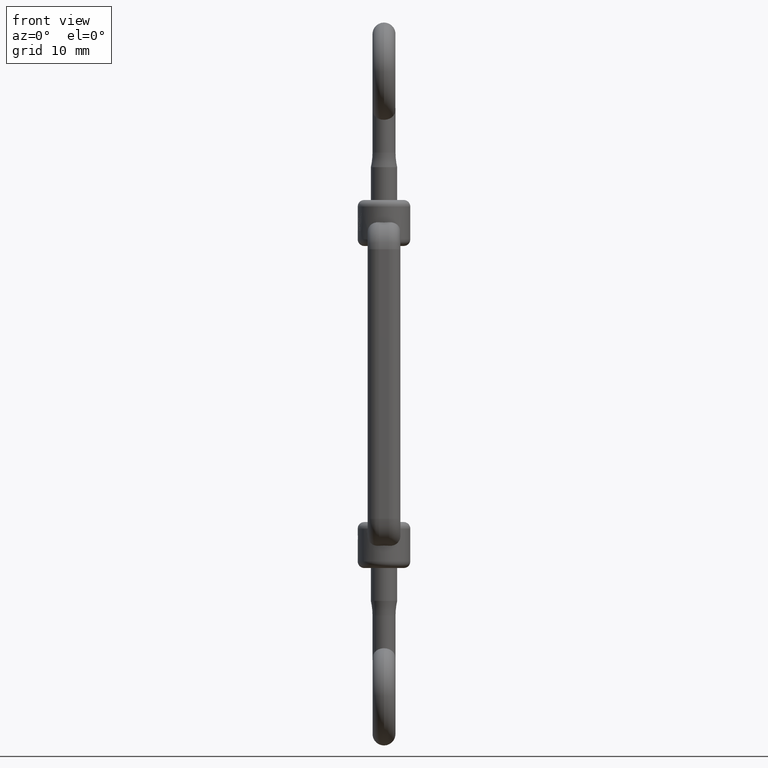
[diagram: clean part render]
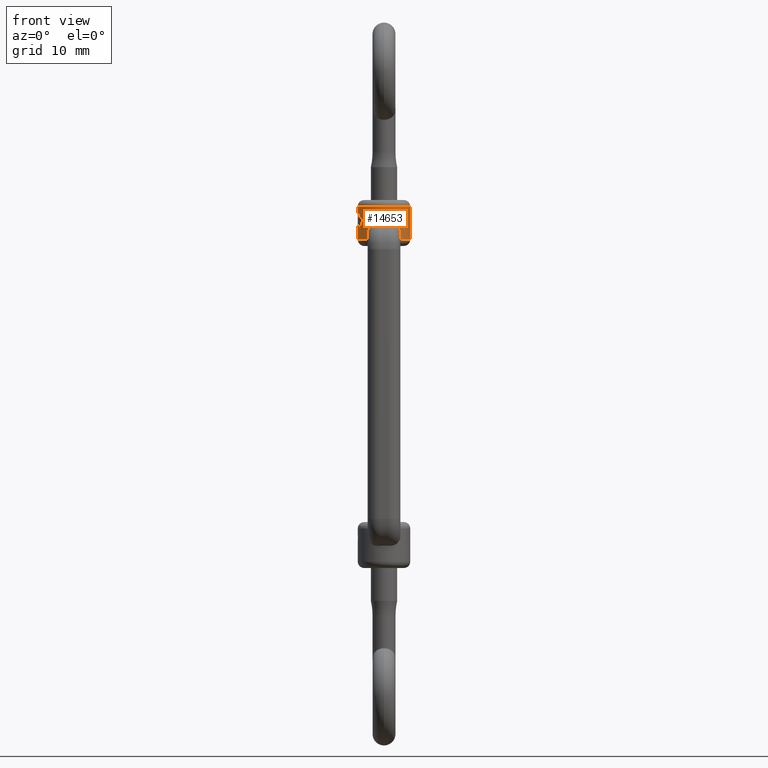
[diagram: same view with one face highlighted and labeled with its STEP entity id]
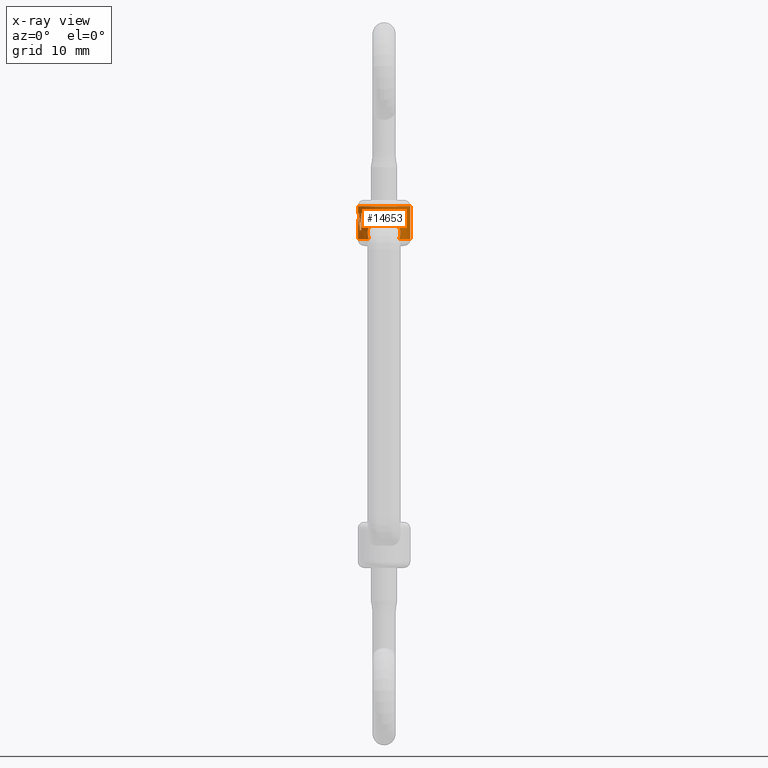
[diagram: x-ray of the same camera — body ghosted, the highlighted face saturated]
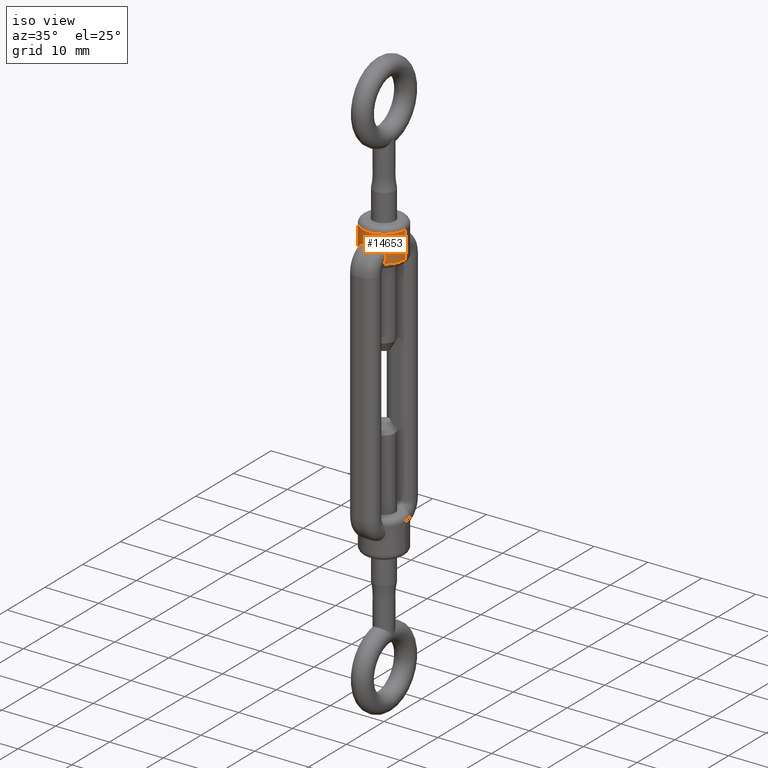
[diagram: same view with one face highlighted and labeled with its STEP entity id]
A machine part, front view. The second image highlights one B-rep face of the part: STEP entity #14653.
The next image is the same camera in x-ray: the body ghosted, the highlighted face saturated — about 0% of this face is hidden behind the body in this view.
A second angle (iso view) of the same face is appended — the face is thin or edge-on in the first view.
In plain terms, the highlighted cylindrical surface (edge-blend (fillet) strip) has radius 4 mm, axis along (0, 0, 1).
Its self-contained STEP definition (entity closure, byte-faithful):
#102 = ORIENTED_EDGE ( 'NONE', *, *, #237, .T. ) ;
#112 = CARTESIAN_POINT ( 'NONE',  ( -3.820607176815367100, -1.201438252666023400, 24.58450743411681200 ) ) ;
#232 = CARTESIAN_POINT ( 'NONE',  ( -3.675891280086085000, -1.577283518263987300, 23.35416666666666800 ) ) ;
#237 = EDGE_CURVE ( 'NONE', #10668, #16321, #13884, .T. ) ;
#293 = CARTESIAN_POINT ( 'NONE',  ( 0.0000000000000000000, 4.730167233106488900E-017, 26.00000000000000400 ) ) ;
#301 = CARTESIAN_POINT ( 'NONE',  ( 0.0000000000000000000, 4.730167233106488900E-017, 27.00000000000000000 ) ) ;
#322 = CARTESIAN_POINT ( 'NONE',  ( 0.0000000000000000000, 4.730167233106488900E-017, 22.00000000000000400 ) ) ;
#323 = CIRCLE ( 'NONE', #15048, 4.000000000000017800 ) ;
#403 = CARTESIAN_POINT ( 'NONE',  ( 2.505915121698893500, -3.117779883364031800, 23.08535089372180600 ) ) ;
#404 = EDGE_CURVE ( 'NONE', #4971, #8187, #12880, .T. ) ;
#488 = CARTESIAN_POINT ( 'NONE',  ( -1.915807076917279300, -3.513640479461432400, 24.31116552042230700 ) ) ;
#536 = FACE_OUTER_BOUND ( 'NONE', #8416, .T. ) ;
#603 = CIRCLE ( 'NONE', #13427, 4.000000000000016900 ) ;
#657 = CARTESIAN_POINT ( 'NONE',  ( -2.133886989436876400, -3.385633248180955700, 24.11095676014379700 ) ) ;
#669 = CARTESIAN_POINT ( 'NONE',  ( -3.958317004454552400, -0.6105656288967674600, 23.96933705039174000 ) ) ;
#877 = VERTEX_POINT ( 'NONE', #16607 ) ;
#1055 = CARTESIAN_POINT ( 'NONE',  ( -3.997650107110154200, -0.1582977044203428800, 24.79707448271205500 ) ) ;
#1343 = VERTEX_POINT ( 'NONE', #7484 ) ;
#1428 = CARTESIAN_POINT ( 'NONE',  ( -3.982074811440984100, -0.4203692242310844700, 24.88590912126068800 ) ) ;
#1568 = DIRECTION ( 'NONE',  ( -0.8635355810548461800, -0.5042879140454082900, 0.0000000000000000000 ) ) ;
#1597 = CARTESIAN_POINT ( 'NONE',  ( 1.794267954794493300, -3.578120044754976400, 24.39218967301063400 ) ) ;
#1652 = CARTESIAN_POINT ( 'NONE',  ( 2.435236385432427000, -3.173514875280989400, 23.56578017992050200 ) ) ;
#1675 = DIRECTION ( 'NONE',  ( -0.0000000000000000000, -0.0000000000000000000, 1.000000000000000000 ) ) ;
#1702 = CARTESIAN_POINT ( 'NONE',  ( 2.232963278390115200, -3.319964034197485000, 23.98604057360628500 ) ) ;
#1703 = CARTESIAN_POINT ( 'NONE',  ( 0.0000000000000000000, 4.730167233106488900E-017, 23.35416666666666800 ) ) ;
#1761 = DIRECTION ( 'NONE',  ( 0.0000000000000000000, 0.0000000000000000000, -1.000000000000000000 ) ) ;
#1833 = CARTESIAN_POINT ( 'NONE',  ( -1.519110280752455900, -3.703287374382886900, 24.52220438770821800 ) ) ;
#1886 = CARTESIAN_POINT ( 'NONE',  ( -2.285367486464756400, -3.282848679395670400, 22.00000000000000400 ) ) ;
#1967 = CARTESIAN_POINT ( 'NONE',  ( -0.5015506673385821100, -3.976483768798634500, 24.59041598686850700 ) ) ;
#2015 = CARTESIAN_POINT ( 'NONE',  ( -3.922250082186132600, -0.8105665843933194100, 24.58450743411681200 ) ) ;
#2268 = CIRCLE ( 'NONE', #3363, 4.000000000000016900 ) ;
#2309 = ORIENTED_EDGE ( 'NONE', *, *, #3494, .T. ) ;
#2621 = DIRECTION ( 'NONE',  ( -0.0000000000000000000, -0.0000000000000000000, 1.000000000000000000 ) ) ;
#2733 = CARTESIAN_POINT ( 'NONE',  ( -3.518084065579619500, -1.905759295061697100, 25.44295456063034400 ) ) ;
#2766 = ORIENTED_EDGE ( 'NONE', *, *, #6933, .F. ) ;
#3014 = ORIENTED_EDGE ( 'NONE', *, *, #12704, .F. ) ;
#3057 = CARTESIAN_POINT ( 'NONE',  ( -2.478139809287710300, -3.139964928057229700, 22.60798330392394100 ) ) ;
#3062 = ORIENTED_EDGE ( 'NONE', *, *, #15175, .T. ) ;
#3115 = CARTESIAN_POINT ( 'NONE',  ( -0.9102807958134560000, -3.898463142923325600, 24.62512443992187300 ) ) ;
#3121 = CARTESIAN_POINT ( 'NONE',  ( 4.000000000000017800, 4.730167233106488900E-017, 21.00000000000000000 ) ) ;
#3124 = CARTESIAN_POINT ( 'NONE',  ( 0.0000000000000000000, 4.730167233106488900E-017, 22.00000000000000400 ) ) ;
#3189 = VERTEX_POINT ( 'NONE', #6109 ) ;
#3223 = DIRECTION ( 'NONE',  ( 1.000000000000000000, 0.0000000000000000000, 0.0000000000000000000 ) ) ;
#3239 = CARTESIAN_POINT ( 'NONE',  ( 0.2522201147461041200, -3.999881959504913100, 24.57927059126723200 ) ) ;
#3279 = CARTESIAN_POINT ( 'NONE',  ( -2.378056580479059400, -3.217631623502056600, 23.72367511925733300 ) ) ;
#3363 = AXIS2_PLACEMENT_3D ( 'NONE', #293, #13386, #16075 ) ;
#3483 = CARTESIAN_POINT ( 'NONE',  ( 0.7499999999999984500, -3.929058411375446100, 24.61151375137878400 ) ) ;
#3494 = EDGE_CURVE ( 'NONE', #16789, #7013, #10937, .T. ) ;
#3919 = CARTESIAN_POINT ( 'NONE',  ( -3.806015099991135700, -1.230548275623351000, 26.00000000000000400 ) ) ;
#3942 = ORIENTED_EDGE ( 'NONE', *, *, #6254, .F. ) ;
#4034 = VERTEX_POINT ( 'NONE', #13330 ) ;
#4107 = DIRECTION ( 'NONE',  ( -0.8019418066703470900, -0.5974021582772359700, 0.0000000000000000000 ) ) ;
#4168 = ORIENTED_EDGE ( 'NONE', *, *, #14603, .F. ) ;
#4215 = CARTESIAN_POINT ( 'NONE',  ( -3.675891280086085000, -1.577283518263987300, 23.35416666666666800 ) ) ;
#4228 = AXIS2_PLACEMENT_3D ( 'NONE', #322, #4397, #13590 ) ;
#4374 = DIRECTION ( 'NONE',  ( -1.000000000000000000, 0.0000000000000000000, 0.0000000000000000000 ) ) ;
#4393 = CARTESIAN_POINT ( 'NONE',  ( -0.7499999999999984500, -3.929058411375446100, 24.61151375137878400 ) ) ;
#4397 = DIRECTION ( 'NONE',  ( -0.0000000000000000000, -0.0000000000000000000, 1.000000000000000000 ) ) ;
#4504 = CARTESIAN_POINT ( 'NONE',  ( -2.496662105179642900, -3.125435674280251200, 23.25929025545020300 ) ) ;
#4558 = DIRECTION ( 'NONE',  ( -0.0000000000000000000, -0.0000000000000000000, 1.000000000000000000 ) ) ;
#4615 = CARTESIAN_POINT ( 'NONE',  ( -2.389663278387283100, -3.210242770591276600, 22.30010719318571300 ) ) ;
#4663 = AXIS2_PLACEMENT_3D ( 'NONE', #3124, #8537, #16394 ) ;
#4839 = CARTESIAN_POINT ( 'NONE',  ( -3.454142324219400300, -2.017151656181642000, 23.35416666666666800 ) ) ;
#4916 = VECTOR ( 'NONE', #6039, 1000.000000000000000 ) ;
#4971 = VERTEX_POINT ( 'NONE', #13513 ) ;
#5108 = CARTESIAN_POINT ( 'NONE',  ( -0.7499999999999984500, -3.929058411375446100, 24.61151375137878400 ) ) ;
#5453 = B_SPLINE_CURVE_WITH_KNOTS ( 'NONE', 3,
 ( #232, #6751, #112, #11866 ),
 .UNSPECIFIED., .F., .F.,
 ( 4, 4 ),
 ( 0.0000000000000000000, 1.000000000000000000 ),
 .UNSPECIFIED. ) ;
#5583 = EDGE_CURVE ( 'NONE', #14681, #13548, #15483, .T. ) ;
#5596 = CARTESIAN_POINT ( 'NONE',  ( 2.381679117500231000, -3.214948020150076400, 23.71540290496990600 ) ) ;
#5710 = CARTESIAN_POINT ( 'NONE',  ( 2.285367486464756000, -3.282848679395671300, 22.00000000000001100 ) ) ;
#5731 = CARTESIAN_POINT ( 'NONE',  ( 0.0000000000000000000, 4.730167233106488900E-017, 23.35416666666666800 ) ) ;
#5856 = CARTESIAN_POINT ( 'NONE',  ( -1.066627542642636600, -3.858493691155237200, 24.61884925725691200 ) ) ;
#5869 = DIRECTION ( 'NONE',  ( -0.9947591092094586500, -0.1022463429409802100, 0.0000000000000000000 ) ) ;
#5875 = CARTESIAN_POINT ( 'NONE',  ( -3.992954459425235700, -0.2373071531923571800, 24.32886368189102900 ) ) ;
#5912 = CARTESIAN_POINT ( 'NONE',  ( -2.432289659441128700, -3.175789167133020700, 23.57552887162764700 ) ) ;
#5926 = CARTESIAN_POINT ( 'NONE',  ( -3.979036436837851500, -0.4089853717639225200, 23.35416666666666800 ) ) ;
#6039 = DIRECTION ( 'NONE',  ( -0.0000000000000000000, -0.0000000000000000000, 1.000000000000000000 ) ) ;
#6089 = CARTESIAN_POINT ( 'NONE',  ( -3.207767226681401700, -2.389608633108954100, 26.00000000000000400 ) ) ;
#6109 = CARTESIAN_POINT ( 'NONE',  ( -3.871250776647956900, -1.006686358456659700, 25.19967781784188100 ) ) ;
#6142 = EDGE_CURVE ( 'NONE', #877, #4971, #9785, .T. ) ;
#6254 = EDGE_CURVE ( 'NONE', #4034, #14769, #603, .T. ) ;
#6339 = CARTESIAN_POINT ( 'NONE',  ( 4.000000000000017800, 4.730167233106488900E-017, 27.00000000000000000 ) ) ;
#6487 = EDGE_CURVE ( 'NONE', #15719, #3189, #5453, .T. ) ;
#6625 = VERTEX_POINT ( 'NONE', #11687 ) ;
#6751 = CARTESIAN_POINT ( 'NONE',  ( -3.755240041148034000, -1.392359618726709800, 23.96933705039174400 ) ) ;
#6838 = EDGE_CURVE ( 'NONE', #14681, #4034, #10486, .T. ) ;
#6908 = B_SPLINE_CURVE_WITH_KNOTS ( 'NONE', 3,
 ( #5710, #8171, #10936, #403, #14844, #1652, #5596, #1702, #12175, #8221, #1597, #13502, #12282, #16190 ),
 .UNSPECIFIED., .F., .F.,
 ( 4, 2, 2, 2, 2, 2, 4 ),
 ( 2.151219171439462900E-007, 0.0009599175930082035400, 0.001439768828553733300, 0.001919620064099263100, 0.002399471299644793200, 0.002879322535190322700, 0.003839025006281382300 ),
 .UNSPECIFIED. ) ;
#6933 = EDGE_CURVE ( 'NONE', #15610, #1343, #9023, .T. ) ;
#7013 = VERTEX_POINT ( 'NONE', #6339 ) ;
#7110 = B_SPLINE_CURVE_WITH_KNOTS ( 'NONE', 3,
 ( #4393, #3115, #5856, #13813, #1833, #16324, #488, #657, #11071, #3279, #5912, #4504, #8471, #3057, #4615, #1886 ),
 .UNSPECIFIED., .F., .F.,
 ( 4, 2, 2, 2, 2, 2, 2, 4 ),
 ( 2.014117449053247000E-007, 0.0004844429265933005400, 0.0009686844414416957400, 0.001452925956290090800, 0.001937167471138486100, 0.002421408985986881000, 0.002905650500835276100, 0.003874133530532056300 ),
 .UNSPECIFIED. ) ;
#7269 = CARTESIAN_POINT ( 'NONE',  ( 0.7499999999999984500, -3.929058411375446100, 24.61151375137878400 ) ) ;
#7294 = AXIS2_PLACEMENT_3D ( 'NONE', #10674, #10842, #4107 ) ;
#7484 = CARTESIAN_POINT ( 'NONE',  ( -0.7499999999999984500, -3.929058411375446100, 24.61151375137878400 ) ) ;
#7658 = ORIENTED_EDGE ( 'NONE', *, *, #14925, .T. ) ;
#7729 = CYLINDRICAL_SURFACE ( 'NONE', #15723, 4.000000000000017800 ) ;
#8109 = VERTEX_POINT ( 'NONE', #13554 ) ;
#8171 = CARTESIAN_POINT ( 'NONE',  ( 2.388727490320236700, -3.210894222982987300, 22.29741449844381100 ) ) ;
#8187 = VERTEX_POINT ( 'NONE', #6089 ) ;
#8221 = CARTESIAN_POINT ( 'NONE',  ( 1.918844120918643500, -3.512028818488435600, 24.30915524562822900 ) ) ;
#8292 = CARTESIAN_POINT ( 'NONE',  ( -3.681955728363918800, -1.573672278294446300, 24.88590912126068800 ) ) ;
#8416 = EDGE_LOOP ( 'NONE', ( #15615, #14253, #9065, #2766, #10790, #10756, #2309, #7658, #4168, #102, #14461, #10356, #14833, #10298, #12765, #3062, #3014, #16885, #9284, #3942 ) ) ;
#8471 = CARTESIAN_POINT ( 'NONE',  ( -2.505790819555485900, -3.117876125599464900, 23.09608957247214200 ) ) ;
#8537 = DIRECTION ( 'NONE',  ( -0.0000000000000000000, -0.0000000000000000000, 1.000000000000000000 ) ) ;
#8642 = CARTESIAN_POINT ( 'NONE',  ( -3.454142324219400300, -2.017151656181642000, 23.35416666666666800 ) ) ;
#8726 = CARTESIAN_POINT ( 'NONE',  ( -3.207767226681401700, -2.389608633108954100, 26.00000000000000400 ) ) ;
#8778 = CARTESIAN_POINT ( 'NONE',  ( -3.922710612332391800, -0.7825224929003494800, 26.00000000000000400 ) ) ;
#8957 = VERTEX_POINT ( 'NONE', #3919 ) ;
#9023 = B_SPLINE_CURVE_WITH_KNOTS ( 'NONE', 3,
 ( #3483, #9842, #3239, #9900, #1967, #5108 ),
 .UNSPECIFIED., .F., .F.,
 ( 4, 2, 4 ),
 ( 0.0000000000000000000, 0.0007505125367728905100, 0.001501025073545781000 ),
 .UNSPECIFIED. ) ;
#9065 = ORIENTED_EDGE ( 'NONE', *, *, #14629, .F. ) ;
#9124 = EDGE_CURVE ( 'NONE', #16321, #13468, #11891, .T. ) ;
#9274 = CARTESIAN_POINT ( 'NONE',  ( -2.285367486464756400, -3.282848679395670400, 22.00000000000000400 ) ) ;
#9284 = ORIENTED_EDGE ( 'NONE', *, *, #9944, .T. ) ;
#9330 = VERTEX_POINT ( 'NONE', #8642 ) ;
#9347 = B_SPLINE_CURVE_WITH_KNOTS ( 'NONE', 3,
 ( #10893, #16317, #8292, #12239 ),
 .UNSPECIFIED., .F., .F.,
 ( 4, 4 ),
 ( 0.0000000000000000000, 1.000000000000000000 ),
 .UNSPECIFIED. ) ;
#9547 = EDGE_CURVE ( 'NONE', #8957, #877, #9347, .T. ) ;
#9599 = EDGE_CURVE ( 'NONE', #13468, #8957, #2268, .T. ) ;
#9785 = B_SPLINE_CURVE_WITH_KNOTS ( 'NONE', 3,
 ( #14713, #10581, #2733, #13261 ),
 .UNSPECIFIED., .F., .F.,
 ( 4, 4 ),
 ( 0.0000000000000000000, 1.000000000000000000 ),
 .UNSPECIFIED. ) ;
#9842 = CARTESIAN_POINT ( 'NONE',  ( 0.5015960707801341300, -3.976475101943219000, 24.59041984242773500 ) ) ;
#9875 = CARTESIAN_POINT ( 'NONE',  ( -4.000000000000017800, 5.371603919900082900E-016, 22.00000000000000400 ) ) ;
#9900 = CARTESIAN_POINT ( 'NONE',  ( -0.2484620695812528300, -4.000117157813606100, 24.57916104161288100 ) ) ;
#9944 = EDGE_CURVE ( 'NONE', #3189, #14769, #15301, .T. ) ;
#10042 = CARTESIAN_POINT ( 'NONE',  ( -3.979036436837851500, -0.4089853717639225200, 23.35416666666666800 ) ) ;
#10110 = CARTESIAN_POINT ( 'NONE',  ( -3.999999962768070900, 6.965656207273475000E-010, 25.73349608423637500 ) ) ;
#10202 = CARTESIAN_POINT ( 'NONE',  ( -3.999999962768070900, 6.965656207273475000E-010, 25.73349608423637500 ) ) ;
#10298 = ORIENTED_EDGE ( 'NONE', *, *, #6142, .T. ) ;
#10356 = ORIENTED_EDGE ( 'NONE', *, *, #9599, .T. ) ;
#10486 = LINE ( 'NONE', #11149, #4916 ) ;
#10581 = CARTESIAN_POINT ( 'NONE',  ( -3.561904770510234900, -1.822544482040345800, 24.88590912126068800 ) ) ;
#10668 = VERTEX_POINT ( 'NONE', #10202 ) ;
#10674 = CARTESIAN_POINT ( 'NONE',  ( 0.0000000000000000000, 4.730167233106488900E-017, 26.00000000000000400 ) ) ;
#10756 = ORIENTED_EDGE ( 'NONE', *, *, #16836, .T. ) ;
#10790 = ORIENTED_EDGE ( 'NONE', *, *, #15848, .F. ) ;
#10831 = LINE ( 'NONE', #14979, #13340 ) ;
#10842 = DIRECTION ( 'NONE',  ( -0.0000000000000000000, -0.0000000000000000000, 1.000000000000000000 ) ) ;
#10893 = CARTESIAN_POINT ( 'NONE',  ( -3.806015099991135700, -1.230548275623351000, 26.00000000000000400 ) ) ;
#10936 = CARTESIAN_POINT ( 'NONE',  ( 2.476077322336598400, -3.141606131721939900, 22.59870862083341300 ) ) ;
#10937 = LINE ( 'NONE', #3121, #13646 ) ;
#11015 = DIRECTION ( 'NONE',  ( -0.0000000000000000000, -0.0000000000000000000, 1.000000000000000000 ) ) ;
#11046 = CARTESIAN_POINT ( 'NONE',  ( -3.958586350370572000, -0.6026808402904317900, 25.44295456063034400 ) ) ;
#11071 = CARTESIAN_POINT ( 'NONE',  ( -2.229038536411675600, -3.322603432206727700, 23.99141542557784100 ) ) ;
#11126 = CARTESIAN_POINT ( 'NONE',  ( 0.0000000000000000000, 4.730167233106488900E-017, 21.00000000000000000 ) ) ;
#11149 = CARTESIAN_POINT ( 'NONE',  ( -4.000000000000017800, 5.371603919900082900E-016, 21.00000000000000000 ) ) ;
#11429 = CARTESIAN_POINT ( 'NONE',  ( -4.000000000000017800, -0.07914886039885597700, 25.26528528353308500 ) ) ;
#11431 = B_SPLINE_CURVE_WITH_KNOTS ( 'NONE', 3,
 ( #8726, #12859, #12738, #4839 ),
 .UNSPECIFIED., .F., .F.,
 ( 4, 4 ),
 ( 0.0000000000000000000, 1.000000000000000000 ),
 .UNSPECIFIED. ) ;
#11687 = CARTESIAN_POINT ( 'NONE',  ( -4.000000000000017800, 5.371603919900082900E-016, 27.00000000000000000 ) ) ;
#11866 = CARTESIAN_POINT ( 'NONE',  ( -3.871250776647956900, -1.006686358456659700, 25.19967781784188100 ) ) ;
#11891 = B_SPLINE_CURVE_WITH_KNOTS ( 'NONE', 3,
 ( #15952, #1428, #11046, #8778 ),
 .UNSPECIFIED., .F., .F.,
 ( 4, 4 ),
 ( 0.0000000000000000000, 1.000000000000000000 ),
 .UNSPECIFIED. ) ;
#12035 = CIRCLE ( 'NONE', #4228, 4.000000000000017800 ) ;
#12175 = CARTESIAN_POINT ( 'NONE',  ( 2.138963950322114300, -3.382475779883684200, 24.10548879790942300 ) ) ;
#12239 = CARTESIAN_POINT ( 'NONE',  ( -3.602740518322356400, -1.737889742658750300, 24.32886368189102900 ) ) ;
#12282 = CARTESIAN_POINT ( 'NONE',  ( 1.071047328436506500, -3.867775154392165200, 24.63877637615439700 ) ) ;
#12704 = EDGE_CURVE ( 'NONE', #15719, #9330, #15874, .T. ) ;
#12738 = CARTESIAN_POINT ( 'NONE',  ( -3.379036643511357700, -2.145761574889507800, 24.23611111111111400 ) ) ;
#12765 = ORIENTED_EDGE ( 'NONE', *, *, #404, .T. ) ;
#12859 = CARTESIAN_POINT ( 'NONE',  ( -3.296740796152722600, -2.270172129475453500, 25.11805555555555700 ) ) ;
#12880 = CIRCLE ( 'NONE', #7294, 4.000000000000016900 ) ;
#12950 = CARTESIAN_POINT ( 'NONE',  ( -3.992954459425235700, -0.2373071531923571800, 24.32886368189102900 ) ) ;
#13261 = CARTESIAN_POINT ( 'NONE',  ( -3.471387197512480600, -1.987327583702944500, 26.00000000000000400 ) ) ;
#13330 = CARTESIAN_POINT ( 'NONE',  ( -4.000000000000017800, 5.371603919900082900E-016, 23.35416666666666800 ) ) ;
#13340 = VECTOR ( 'NONE', #11015, 1000.000000000000000 ) ;
#13386 = DIRECTION ( 'NONE',  ( -0.0000000000000000000, -0.0000000000000000000, 1.000000000000000000 ) ) ;
#13427 = AXIS2_PLACEMENT_3D ( 'NONE', #1703, #2621, #5869 ) ;
#13468 = VERTEX_POINT ( 'NONE', #15553 ) ;
#13502 = CARTESIAN_POINT ( 'NONE',  ( 1.386212166809356800, -3.764010895535079700, 24.58570348846352300 ) ) ;
#13513 = CARTESIAN_POINT ( 'NONE',  ( -3.471387197512480600, -1.987327583702944500, 26.00000000000000400 ) ) ;
#13548 = VERTEX_POINT ( 'NONE', #9274 ) ;
#13554 = CARTESIAN_POINT ( 'NONE',  ( 2.285367486464756000, -3.282848679395671300, 22.00000000000001100 ) ) ;
#13590 = DIRECTION ( 'NONE',  ( 1.000000000000000000, 0.0000000000000000000, 0.0000000000000000000 ) ) ;
#13646 = VECTOR ( 'NONE', #1675, 1000.000000000000000 ) ;
#13813 = CARTESIAN_POINT ( 'NONE',  ( -1.371804169242108600, -3.760827196330430900, 24.56759669714697500 ) ) ;
#13884 = B_SPLINE_CURVE_WITH_KNOTS ( 'NONE', 3,
 ( #10110, #11429, #1055, #12950 ),
 .UNSPECIFIED., .F., .F.,
 ( 4, 4 ),
 ( 0.1594746716697898500, 1.000000000000000000 ),
 .UNSPECIFIED. ) ;
#14253 = ORIENTED_EDGE ( 'NONE', *, *, #5583, .T. ) ;
#14461 = ORIENTED_EDGE ( 'NONE', *, *, #9124, .T. ) ;
#14484 = AXIS2_PLACEMENT_3D ( 'NONE', #5731, #16101, #1568 ) ;
#14603 = EDGE_CURVE ( 'NONE', #10668, #6625, #10831, .T. ) ;
#14629 = EDGE_CURVE ( 'NONE', #1343, #13548, #7110, .T. ) ;
#14653 = ADVANCED_FACE ( 'NONE', ( #536 ), #7729, .T. ) ;
#14681 = VERTEX_POINT ( 'NONE', #9875 ) ;
#14713 = CARTESIAN_POINT ( 'NONE',  ( -3.602740518322356400, -1.737889742658750300, 24.32886368189102900 ) ) ;
#14769 = VERTEX_POINT ( 'NONE', #10042 ) ;
#14833 = ORIENTED_EDGE ( 'NONE', *, *, #9547, .T. ) ;
#14844 = CARTESIAN_POINT ( 'NONE',  ( 2.497682262829631100, -3.124604971914044100, 23.24924549251397500 ) ) ;
#14925 = EDGE_CURVE ( 'NONE', #7013, #6625, #323, .T. ) ;
#14979 = CARTESIAN_POINT ( 'NONE',  ( -4.000000000000017800, 5.371603919900082900E-016, 21.00000000000000000 ) ) ;
#15048 = AXIS2_PLACEMENT_3D ( 'NONE', #301, #1761, #4374 ) ;
#15175 = EDGE_CURVE ( 'NONE', #8187, #9330, #11431, .T. ) ;
#15301 = B_SPLINE_CURVE_WITH_KNOTS ( 'NONE', 3,
 ( #15821, #2015, #669, #5926 ),
 .UNSPECIFIED., .F., .F.,
 ( 4, 4 ),
 ( 0.0000000000000000000, 1.000000000000000000 ),
 .UNSPECIFIED. ) ;
#15483 = CIRCLE ( 'NONE', #4663, 4.000000000000017800 ) ;
#15553 = CARTESIAN_POINT ( 'NONE',  ( -3.922710612332391800, -0.7825224929003494800, 26.00000000000000400 ) ) ;
#15610 = VERTEX_POINT ( 'NONE', #7269 ) ;
#15615 = ORIENTED_EDGE ( 'NONE', *, *, #6838, .F. ) ;
#15719 = VERTEX_POINT ( 'NONE', #4215 ) ;
#15723 = AXIS2_PLACEMENT_3D ( 'NONE', #11126, #4558, #3223 ) ;
#15821 = CARTESIAN_POINT ( 'NONE',  ( -3.871250776647956900, -1.006686358456659700, 25.19967781784188100 ) ) ;
#15848 = EDGE_CURVE ( 'NONE', #8109, #15610, #6908, .T. ) ;
#15874 = CIRCLE ( 'NONE', #14484, 4.000000000000017800 ) ;
#15952 = CARTESIAN_POINT ( 'NONE',  ( -3.992954459425235700, -0.2373071531923571800, 24.32886368189102900 ) ) ;
#15990 = CARTESIAN_POINT ( 'NONE',  ( 4.000000000000017800, 4.730167233106488900E-017, 22.00000000000000400 ) ) ;
#16075 = DIRECTION ( 'NONE',  ( -0.9515037749977793800, -0.3076370689058383600, 0.0000000000000000000 ) ) ;
#16101 = DIRECTION ( 'NONE',  ( -0.0000000000000000000, -0.0000000000000000000, 1.000000000000000000 ) ) ;
#16190 = CARTESIAN_POINT ( 'NONE',  ( 0.7499999999999984500, -3.929058411375446100, 24.61151375137878400 ) ) ;
#16317 = CARTESIAN_POINT ( 'NONE',  ( -3.749925154969275400, -1.404031252228013200, 25.44295456063034400 ) ) ;
#16321 = VERTEX_POINT ( 'NONE', #5875 ) ;
#16324 = CARTESIAN_POINT ( 'NONE',  ( -1.789405841620875100, -3.580511158525356400, 24.39495596793365500 ) ) ;
#16394 = DIRECTION ( 'NONE',  ( 1.000000000000000000, 0.0000000000000000000, 0.0000000000000000000 ) ) ;
#16607 = CARTESIAN_POINT ( 'NONE',  ( -3.602740518322356400, -1.737889742658750300, 24.32886368189102900 ) ) ;
#16789 = VERTEX_POINT ( 'NONE', #15990 ) ;
#16836 = EDGE_CURVE ( 'NONE', #8109, #16789, #12035, .T. ) ;
#16885 = ORIENTED_EDGE ( 'NONE', *, *, #6487, .T. ) ;